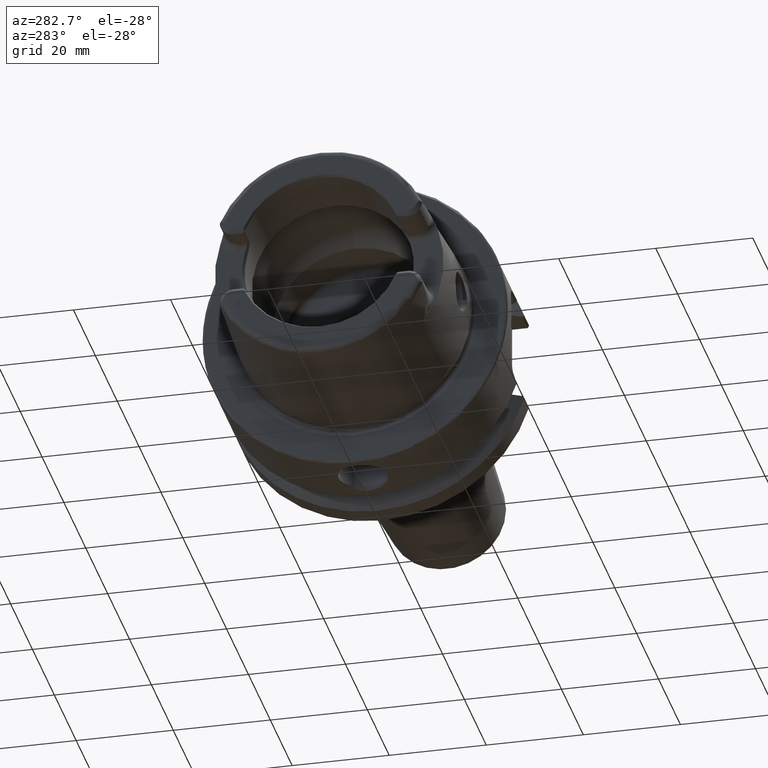
[diagram: clean part render]
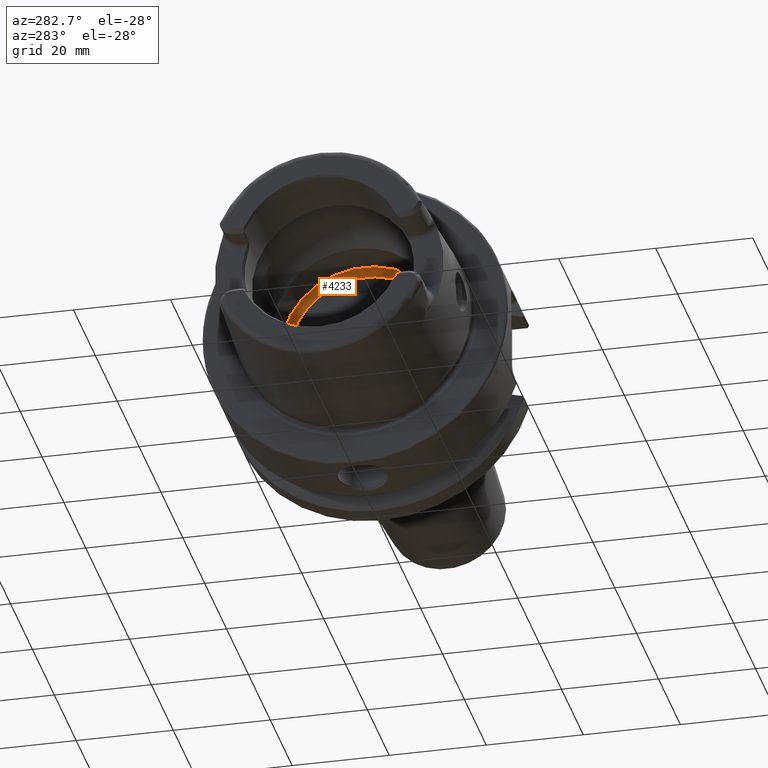
[diagram: same view with one face highlighted and labeled with its STEP entity id]
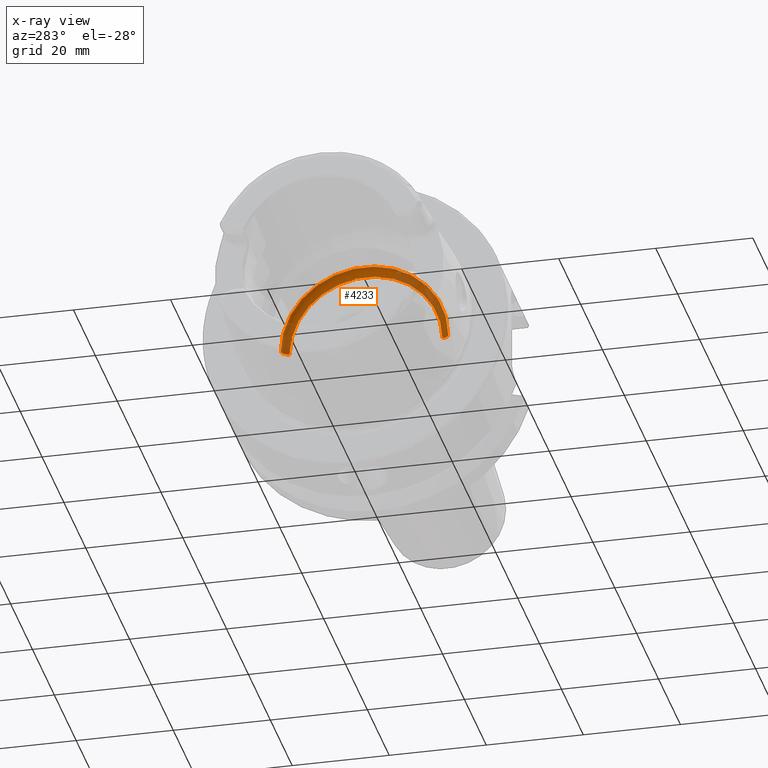
[diagram: x-ray of the same camera — body ghosted, the highlighted face saturated]
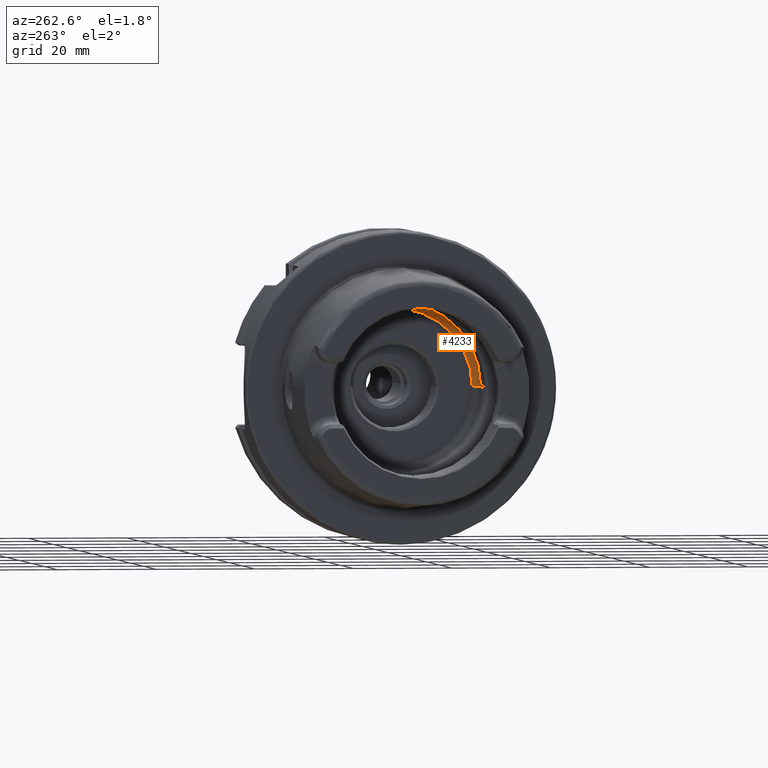
[diagram: same view with one face highlighted and labeled with its STEP entity id]
A machine part, auxiliary view. The second image highlights one B-rep face of the part: STEP entity #4233.
The next image is the same camera in x-ray: the body ghosted, the highlighted face saturated — about 44% of this face is hidden behind the body in this view.
A second angle (auxiliary view) of the same face is appended — the face is thin or edge-on in the first view.
In plain terms, the highlighted toroidal blend (fillet) surface has major radius 15.75 mm and minor (blend) radius 1.5 mm.
Its self-contained STEP definition (entity closure, byte-faithful):
#851=CARTESIAN_POINT('',(3.346456692913E-1,0.E0,0.E0));
#852=DIRECTION('',(1.E0,0.E0,0.E0));
#853=DIRECTION('',(0.E0,1.E0,0.E0));
#854=AXIS2_PLACEMENT_3D('',#851,#852,#853);
#860=CARTESIAN_POINT('',(3.346456692913E-1,6.200787401575E-1,0.E0));
#861=DIRECTION('',(0.E0,0.E0,1.E0));
#862=DIRECTION('',(1.E0,0.E0,0.E0));
#863=AXIS2_PLACEMENT_3D('',#860,#861,#862);
#865=CARTESIAN_POINT('',(3.937007874016E-1,0.E0,0.E0));
#866=DIRECTION('',(1.E0,0.E0,0.E0));
#867=DIRECTION('',(0.E0,1.E0,0.E0));
#868=AXIS2_PLACEMENT_3D('',#865,#866,#867);
#885=CARTESIAN_POINT('',(3.346456692913E-1,-6.200787401575E-1,0.E0));
#886=DIRECTION('',(0.E0,0.E0,-1.E0));
#887=DIRECTION('',(1.E0,0.E0,0.E0));
#888=AXIS2_PLACEMENT_3D('',#885,#886,#887);
#3252=CARTESIAN_POINT('',(3.937007874016E-1,6.200787401575E-1,0.E0));
#3253=CARTESIAN_POINT('',(3.937007874016E-1,-6.200787401575E-1,0.E0));
#3254=VERTEX_POINT('',#3252);
#3255=VERTEX_POINT('',#3253);
#3256=CARTESIAN_POINT('',(3.346456692913E-1,6.791338582677E-1,0.E0));
#3257=CARTESIAN_POINT('',(3.346456692913E-1,-6.791338582677E-1,0.E0));
#3258=VERTEX_POINT('',#3256);
#3259=VERTEX_POINT('',#3257);
#4219=CARTESIAN_POINT('',(3.346456692913E-1,0.E0,0.E0));
#4220=DIRECTION('',(1.E0,0.E0,0.E0));
#4221=DIRECTION('',(0.E0,9.999551005475E-1,-9.476122050687E-3));
#4222=AXIS2_PLACEMENT_3D('',#4219,#4220,#4221);
#4223=TOROIDAL_SURFACE('',#4222,6.200787401575E-1,5.905511811024E-2);
#4225=ORIENTED_EDGE('',*,*,#4224,.F.);
#4227=ORIENTED_EDGE('',*,*,#4226,.T.);
#4228=ORIENTED_EDGE('',*,*,#4209,.T.);
#4230=ORIENTED_EDGE('',*,*,#4229,.F.);
#4231=EDGE_LOOP('',(#4225,#4227,#4228,#4230));
#4232=FACE_OUTER_BOUND('',#4231,.F.);
#4233=ADVANCED_FACE('',(#4232),#4223,.F.);
#855=CIRCLE('',#854,6.791338582677E-1);
#864=CIRCLE('',#863,5.905511811024E-2);
#869=CIRCLE('',#868,6.200787401575E-1);
#889=CIRCLE('',#888,5.905511811024E-2);
#4209=EDGE_CURVE('',#3258,#3259,#855,.T.);
#4224=EDGE_CURVE('',#3254,#3255,#869,.T.);
#4226=EDGE_CURVE('',#3254,#3258,#864,.T.);
#4229=EDGE_CURVE('',#3255,#3259,#889,.T.);